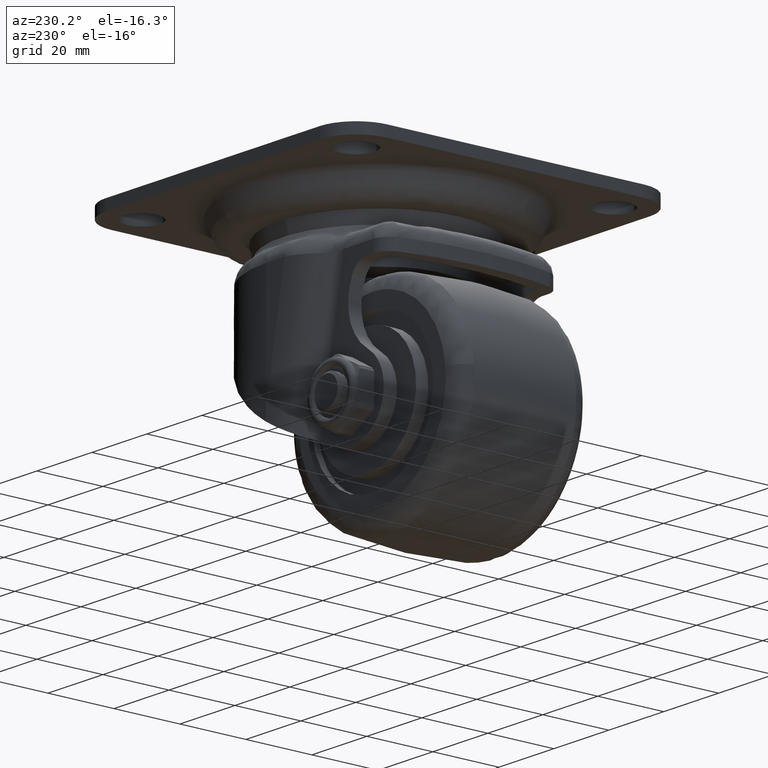
[diagram: clean part render]
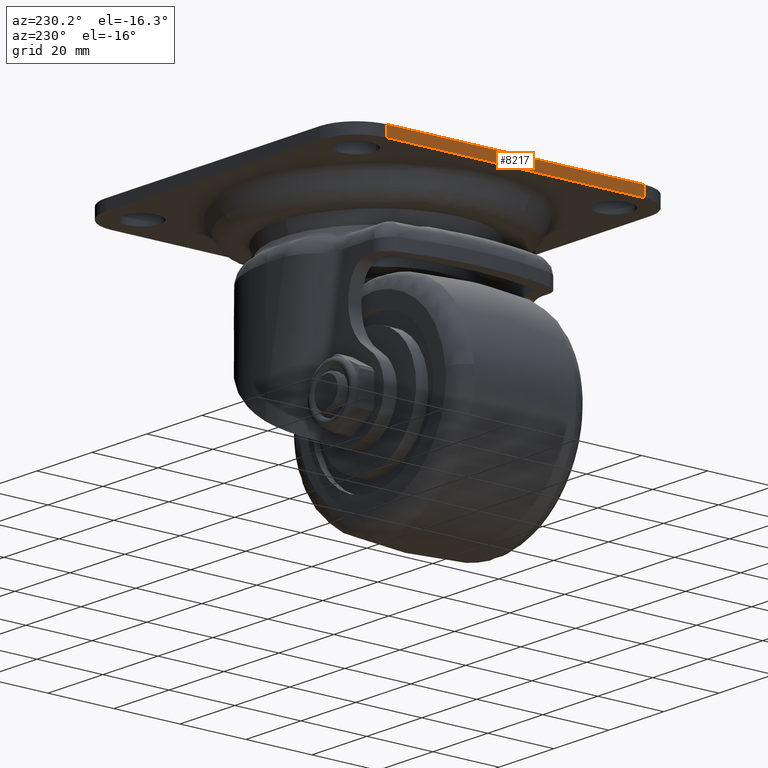
[diagram: same view with one face highlighted and labeled with its STEP entity id]
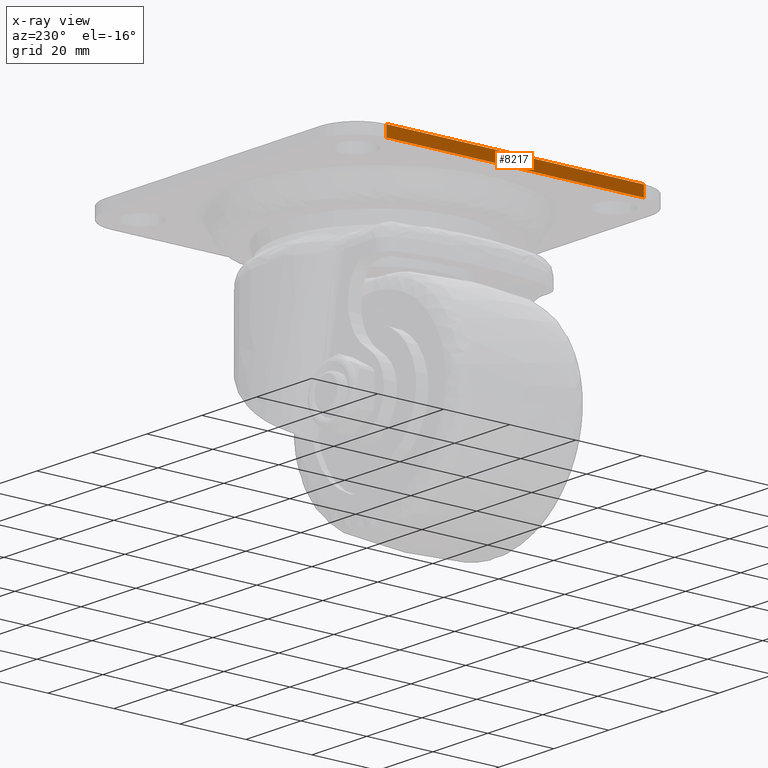
[diagram: x-ray of the same camera — body ghosted, the highlighted face saturated]
A machine part, auxiliary view. The second image highlights one B-rep face of the part: STEP entity #8217.
The next image is the same camera in x-ray: the body ghosted, the highlighted face saturated — about 0% of this face is hidden behind the body in this view.
In plain terms, the highlighted face is a freeform B-spline surface patch.
Its self-contained STEP definition (entity closure, byte-faithful):
#7967=CARTESIAN_POINT('',(-50.0,39.0,0.0));
#7968=VERTEX_POINT('',#7967);
#7982=CARTESIAN_POINT('',(-50.000001000000204,-39.000001900000044,0.0));
#7983=VERTEX_POINT('',#7982);
#7984=CARTESIAN_POINT('',(-50.0,39.0,0.0));
#7985=CARTESIAN_POINT('',(-50.000001000000204,-39.000001900000044,0.0));
#7986=QUASI_UNIFORM_CURVE('',1,(#7984,#7985),.UNSPECIFIED.,.F.,.U.);
#7987=EDGE_CURVE('',#7968,#7983,#7986,.T.);
#8170=CARTESIAN_POINT('',(-50.000001000000204,-39.000001900000044,-3.200000000000000));
#8171=VERTEX_POINT('',#8170);
#8172=CARTESIAN_POINT('',(-50.000001000000204,-39.000001900000044,-3.200000000000000));
#8173=CARTESIAN_POINT('',(-50.000001000000204,-39.000001900000044,0.0));
#8174=QUASI_UNIFORM_CURVE('',1,(#8172,#8173),.UNSPECIFIED.,.F.,.U.);
#8175=EDGE_CURVE('',#8171,#7983,#8174,.T.);
#8196=CARTESIAN_POINT('',(-50.000001000000204,42.896099665055068,-3.359840053876400));
#8197=CARTESIAN_POINT('',(-50.000001000000204,-42.896098078183321,-3.359840053876400));
#8198=CARTESIAN_POINT('',(-50.000001000000204,42.896099665055068,0.159840082486629));
#8199=CARTESIAN_POINT('',(-50.000001000000204,-42.896098078183321,0.159840082486629));
#8200=B_SPLINE_SURFACE_WITH_KNOTS('',1,1,((#8196,#8198),(#8197,#8199)),.UNSPECIFIED.,.F.,.F.,.U.,(2,2),(2,2),(0.0,85.792197743238390),(0.0,3.519680136363030),.UNSPECIFIED.);
#8201=ORIENTED_EDGE('',*,*,#7987,.F.);
#8202=CARTESIAN_POINT('',(-50.0,39.0,-3.200000000000000));
#8203=VERTEX_POINT('',#8202);
#8204=CARTESIAN_POINT('',(-50.0,39.0,-3.200000000000000));
#8205=CARTESIAN_POINT('',(-50.0,39.0,0.0));
#8206=QUASI_UNIFORM_CURVE('',1,(#8204,#8205),.UNSPECIFIED.,.F.,.U.);
#8207=EDGE_CURVE('',#8203,#7968,#8206,.T.);
#8208=ORIENTED_EDGE('',*,*,#8207,.F.);
#8209=CARTESIAN_POINT('',(-50.0,39.0,-3.200000000000000));
#8210=CARTESIAN_POINT('',(-50.000001000000204,-39.000001900000044,-3.200000000000000));
#8211=QUASI_UNIFORM_CURVE('',1,(#8209,#8210),.UNSPECIFIED.,.F.,.U.);
#8212=EDGE_CURVE('',#8203,#8171,#8211,.T.);
#8213=ORIENTED_EDGE('',*,*,#8212,.T.);
#8214=ORIENTED_EDGE('',*,*,#8175,.T.);
#8215=EDGE_LOOP('',(#8201,#8208,#8213,#8214));
#8216=FACE_OUTER_BOUND('',#8215,.T.);
#8217=ADVANCED_FACE('',(#8216),#8200,.T.);